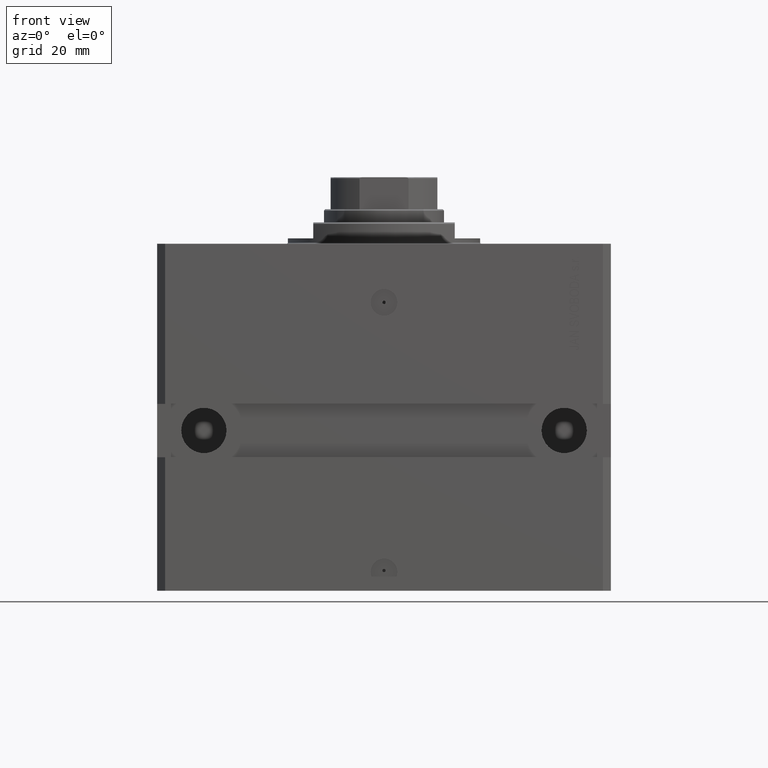
[diagram: clean part render]
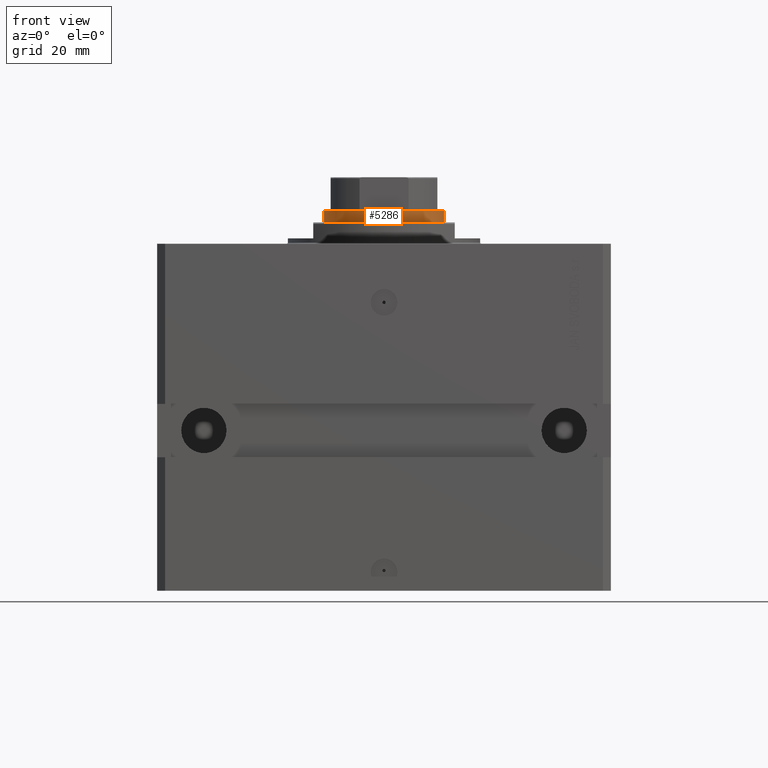
[diagram: same view with one face highlighted and labeled with its STEP entity id]
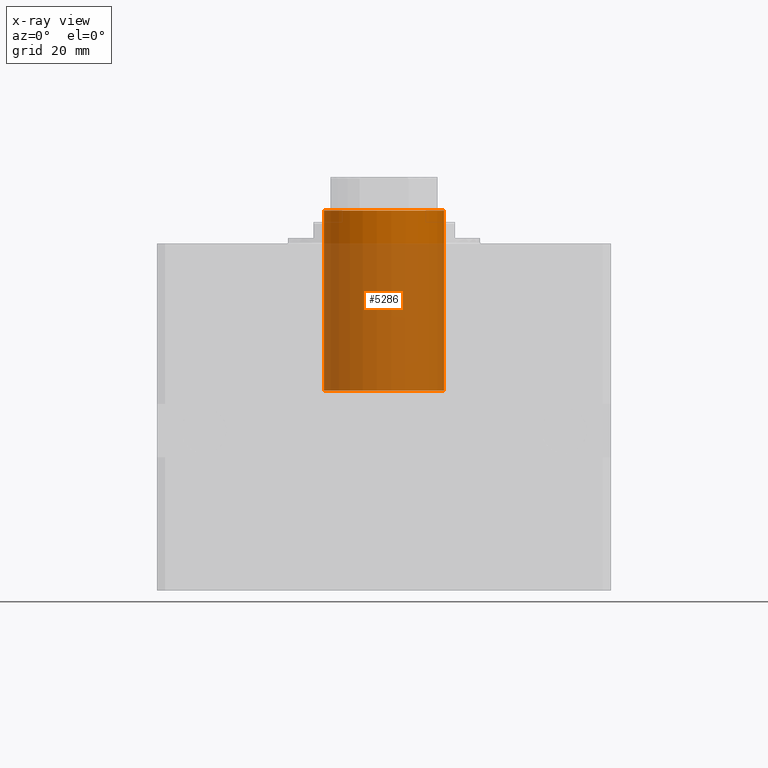
[diagram: x-ray of the same camera — body ghosted, the highlighted face saturated]
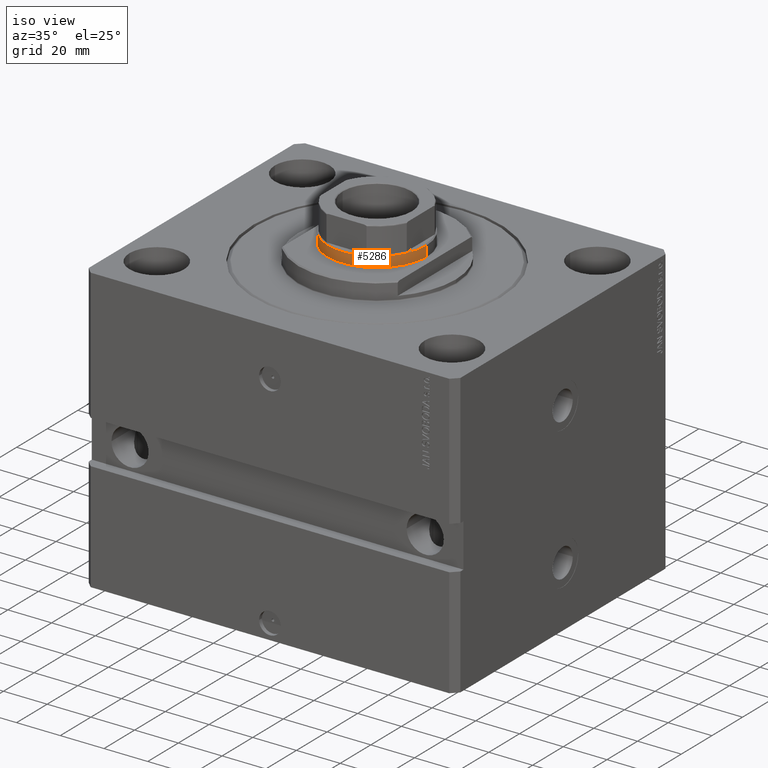
[diagram: same view with one face highlighted and labeled with its STEP entity id]
A machine part, front view. The second image highlights one B-rep face of the part: STEP entity #5286.
The next image is the same camera in x-ray: the body ghosted, the highlighted face saturated — about 82% of this face is hidden behind the body in this view.
A second angle (iso view) of the same face is appended — the face is thin or edge-on in the first view.
In plain terms, the highlighted cylindrical surface (partial cylindrical patch) has radius 22.5 mm, axis along (-0, -0, -1).
Its self-contained STEP definition (entity closure, byte-faithful):
#217 = FACE_OUTER_BOUND ( 'NONE', #3740, .T. ) ;
#659 = ORIENTED_EDGE ( 'NONE', *, *, #10987, .T. ) ;
#1503 = VERTEX_POINT ( 'NONE', #29403 ) ;
#3740 = EDGE_LOOP ( 'NONE', ( #18496, #659, #45456, #47994 ) ) ;
#3822 = AXIS2_PLACEMENT_3D ( 'NONE', #28298, #32998, #10474 ) ;
#5286 = ADVANCED_FACE ( 'NONE', ( #217 ), #7630, .T. ) ;
#6216 = DIRECTION ( 'NONE',  ( 0.000000000000000000, 0.000000000000000000, 1.000000000000000000 ) ) ;
#7630 = CYLINDRICAL_SURFACE ( 'NONE', #30535, 22.50000000000000355 ) ;
#7940 = VECTOR ( 'NONE', #40574, 1000.000000000000000 ) ;
#9181 = CARTESIAN_POINT ( 'NONE',  ( 22.50000000000000355, 2.755455298081545172E-15, 114.0000000000000000 ) ) ;
#9813 = AXIS2_PLACEMENT_3D ( 'NONE', #48032, #6216, #40606 ) ;
#10474 = DIRECTION ( 'NONE',  ( 1.000000000000000000, 0.000000000000000000, 0.000000000000000000 ) ) ;
#10532 = EDGE_CURVE ( 'NONE', #26342, #22076, #32445, .T. ) ;
#10602 = CIRCLE ( 'NONE', #9813, 22.50000000000000355 ) ;
#10987 = EDGE_CURVE ( 'NONE', #26342, #20928, #12501, .T. ) ;
#11350 = CARTESIAN_POINT ( 'NONE',  ( 0.000000000000000000, 0.000000000000000000, 114.0000000000000000 ) ) ;
#12368 = CARTESIAN_POINT ( 'NONE',  ( -22.50000000000000355, 0.000000000000000000, 113.4999999999999858 ) ) ;
#12501 = CIRCLE ( 'NONE', #3822, 22.50000000000000355 ) ;
#17088 = LINE ( 'NONE', #29213, #7940 ) ;
#18496 = ORIENTED_EDGE ( 'NONE', *, *, #10532, .F. ) ;
#18772 = CARTESIAN_POINT ( 'NONE',  ( 22.50000000000000355, 2.755455298081545172E-15, 46.00000000000000000 ) ) ;
#18876 = EDGE_CURVE ( 'NONE', #20928, #1503, #17088, .T. ) ;
#19264 = DIRECTION ( 'NONE',  ( -0.000000000000000000, -0.000000000000000000, -1.000000000000000000 ) ) ;
#20928 = VERTEX_POINT ( 'NONE', #12368 ) ;
#22076 = VERTEX_POINT ( 'NONE', #18772 ) ;
#22210 = CARTESIAN_POINT ( 'NONE',  ( 22.50000000000000355, 2.755455298081545172E-15, 113.4999999999999858 ) ) ;
#24291 = DIRECTION ( 'NONE',  ( -0.000000000000000000, -0.000000000000000000, -1.000000000000000000 ) ) ;
#24376 = VECTOR ( 'NONE', #24291, 1000.000000000000000 ) ;
#26342 = VERTEX_POINT ( 'NONE', #22210 ) ;
#28298 = CARTESIAN_POINT ( 'NONE',  ( 0.000000000000000000, 0.000000000000000000, 113.4999999999999858 ) ) ;
#29213 = CARTESIAN_POINT ( 'NONE',  ( -22.50000000000000355, 0.000000000000000000, 114.0000000000000000 ) ) ;
#29403 = CARTESIAN_POINT ( 'NONE',  ( -22.50000000000000355, 0.000000000000000000, 46.00000000000000000 ) ) ;
#30163 = DIRECTION ( 'NONE',  ( -1.000000000000000000, 0.000000000000000000, 0.000000000000000000 ) ) ;
#30535 = AXIS2_PLACEMENT_3D ( 'NONE', #11350, #19264, #30163 ) ;
#32445 = LINE ( 'NONE', #9181, #24376 ) ;
#32998 = DIRECTION ( 'NONE',  ( 0.000000000000000000, 0.000000000000000000, -1.000000000000000000 ) ) ;
#40574 = DIRECTION ( 'NONE',  ( -0.000000000000000000, -0.000000000000000000, -1.000000000000000000 ) ) ;
#40606 = DIRECTION ( 'NONE',  ( 1.000000000000000000, 0.000000000000000000, 0.000000000000000000 ) ) ;
#45456 = ORIENTED_EDGE ( 'NONE', *, *, #18876, .T. ) ;
#47245 = EDGE_CURVE ( 'NONE', #1503, #22076, #10602, .T. ) ;
#47994 = ORIENTED_EDGE ( 'NONE', *, *, #47245, .T. ) ;
#48032 = CARTESIAN_POINT ( 'NONE',  ( 0.000000000000000000, 0.000000000000000000, 46.00000000000000000 ) ) ;